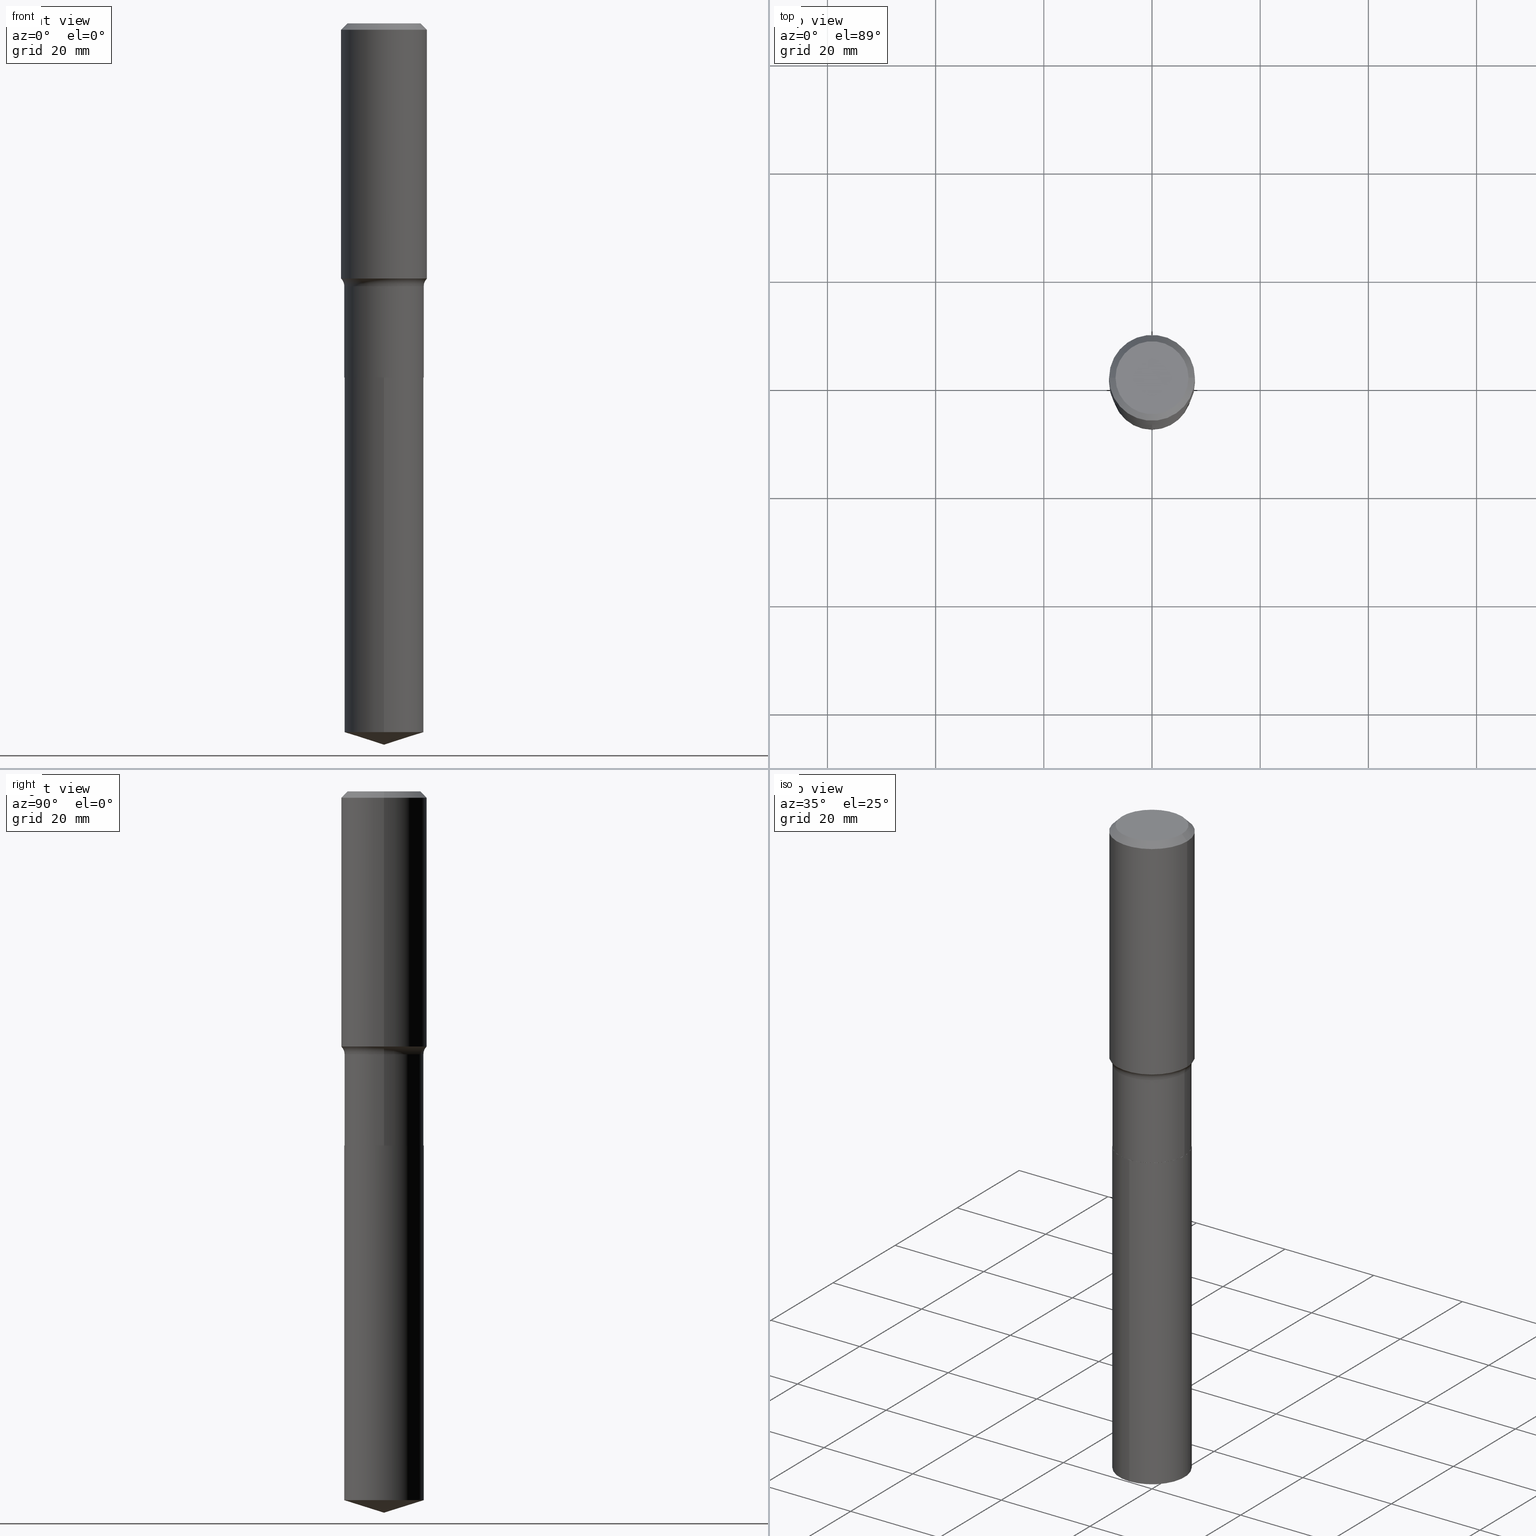
[diagram: canonical four-view strip — front | top / right | iso, engineering-drawing reading convention]
A machine part, canonical four-view strip (front | top / right | iso — engineering-drawing reading convention). The complete STEP part file that produces these views, byte-faithful:
ISO-10303-21;
HEADER;
FILE_DESCRIPTION (( 'STEP AP203' ),
    '1' );
FILE_NAME ('51539.STEP',
    '2024-04-19T13:00:52',
    ( '' ),
    ( '' ),
    'SwSTEP 2.0',
    'SolidWorks 2023',
    '' );
FILE_SCHEMA (( 'CONFIG_CONTROL_DESIGN' ));
ENDSEC;

DATA;
#1 = EDGE_CURVE ( 'NONE', #137, #305, #34, .T. ) ;
#2 = FACE_OUTER_BOUND ( 'NONE', #252, .T. ) ;
#3 = ADVANCED_FACE ( 'NONE', ( #299 ), #27, .T. ) ;
#4 = LINE ( 'NONE', #39, #103 ) ;
#5 = DIRECTION ( 'NONE',  ( 1.000000000000000000, -6.982962677686269077E-15, 0.000000000000000000 ) ) ;
#6 = EDGE_CURVE ( 'NONE', #427, #247, #492, .T. ) ;
#7 = DIRECTION ( 'NONE',  ( 1.000000000000000000, -6.982962677686266711E-15, 4.876176775795935232E-29 ) ) ;
#8 = DIRECTION ( 'NONE',  ( -2.445468806185136597E-29, 3.491481338843145583E-15, 1.000000000000000000 ) ) ;
#9 = CARTESIAN_POINT ( 'NONE',  ( 6.304663129225902554E-29, -9.001388039671515633E-15, -2.578100000000000502 ) ) ;
#10 = EDGE_CURVE ( 'NONE', #36, #463, #171, .T. ) ;
#11 = DIRECTION ( 'NONE',  ( 1.000000000000000000, -6.982962677686269077E-15, 0.000000000000000000 ) ) ;
#12 = CARTESIAN_POINT ( 'NONE',  ( -7.955031918821650812E-47, 1.135767727816383927E-32, 3.252968060235157842E-18 ) ) ;
#13 = ORIENTED_EDGE ( 'NONE', *, *, #109, .T. ) ;
#14 = DIRECTION ( 'NONE',  ( -2.445458499673719709E-29, 3.491496098354104779E-15, 1.000000000000000000 ) ) ;
#15 = DIRECTION ( 'NONE',  ( -2.445458499673719709E-29, 3.491496098354104779E-15, 1.000000000000000000 ) ) ;
#16 = AXIS2_PLACEMENT_3D ( 'NONE', #202, #379, #125 ) ;
#17 = DIRECTION ( 'NONE',  ( 2.445468806185136597E-29, -3.491481338843145583E-15, -1.000000000000000000 ) ) ;
#18 = DIRECTION ( 'NONE',  ( -2.445468806185136597E-29, 3.491481338843145583E-15, 1.000000000000000000 ) ) ;
#19 = EDGE_CURVE ( 'NONE', #491, #36, #61, .T. ) ;
#20 = ORIENTED_EDGE ( 'NONE', *, *, #99, .F. ) ;
#21 = AXIS2_PLACEMENT_3D ( 'NONE', #469, #424, #93 ) ;
#22 = FACE_OUTER_BOUND ( 'NONE', #429, .T. ) ;
#23 = EDGE_CURVE ( 'NONE', #230, #72, #487, .T. ) ;
#24 = DIRECTION ( 'NONE',  ( -2.445468806185136597E-29, 3.491481338843145583E-15, 1.000000000000000000 ) ) ;
#25 = APPROVAL ( #81, 'UNSPECIFIED' ) ;
#26 = DIRECTION ( 'NONE',  ( 0.000000000000000000, 0.000000000000000000, 1.000000000000000000 ) ) ;
#27 = CONICAL_SURFACE ( 'NONE', #272, 0.2885499999999999732, 0.7853981633967311859 ) ;
#28 = VECTOR ( 'NONE', #420, 39.37007874015748143 ) ;
#29 = APPROVAL_DATE_TIME ( #490, #115 ) ;
#30 = ORIENTED_EDGE ( 'NONE', *, *, #403, .T. ) ;
#31 = ORIENTED_EDGE ( 'NONE', *, *, #23, .F. ) ;
#32 = COORDINATED_UNIVERSAL_TIME_OFFSET ( 5, 0, .BEHIND. ) ;
#33 = DIRECTION ( 'NONE',  ( -2.445468806185136877E-29, 3.491481338843145188E-15, 1.000000000000000000 ) ) ;
#34 = LINE ( 'NONE', #399, #375 ) ;
#35 = CIRCLE ( 'NONE', #234, 0.2890499999999999181 ) ;
#36 = VERTEX_POINT ( 'NONE', #245 ) ;
#37 = APPROVAL_DATE_TIME ( #194, #25 ) ;
#38 = TOROIDAL_SURFACE ( 'NONE', #218, 0.3670499999999998209, 0.07799999999999999989 ) ;
#39 = CARTESIAN_POINT ( 'NONE',  ( -0.3125000000000000000, 2.018512649018685091E-15, -0.04687500000000027062 ) ) ;
#40 = ADVANCED_FACE ( 'NONE', ( #22 ), #434, .T. ) ;
#41 = ORIENTED_EDGE ( 'NONE', *, *, #190, .F. ) ;
#42 = DIRECTION ( 'NONE',  ( -2.445468806185136877E-29, 3.491481338843145188E-15, 1.000000000000000000 ) ) ;
#43 = CARTESIAN_POINT ( 'NONE',  ( 0.000000000000000000, 0.000000000000000000, 0.000000000000000000 ) ) ;
#44 = VECTOR ( 'NONE', #289, 39.37007874015748143 ) ;
#45 = CC_DESIGN_APPROVAL ( #115, ( #214 ) ) ;
#46 = ORIENTED_EDGE ( 'NONE', *, *, #276, .T. ) ;
#47 = DIRECTION ( 'NONE',  ( -1.000000000000000000, 6.982962677686266711E-15, 0.000000000000000000 ) ) ;
#48 = ORIENTED_EDGE ( 'NONE', *, *, #264, .F. ) ;
#49 = DIRECTION ( 'NONE',  ( -1.000000000000000000, 6.982962677686266711E-15, 0.000000000000000000 ) ) ;
#50 = EDGE_CURVE ( 'NONE', #247, #427, #35, .T. ) ;
#51 = ORIENTED_EDGE ( 'NONE', *, *, #193, .T. ) ;
#52 = CARTESIAN_POINT ( 'NONE',  ( 4.678915466874022448E-29, -6.680251245608591402E-15, -1.913300000000000001 ) ) ;
#53 = ORIENTED_EDGE ( 'NONE', *, *, #183, .T. ) ;
#54 = CARTESIAN_POINT ( 'NONE',  ( 2.895836394674520226E-29, -1.388302194191780780E-14, -2.578100000000000502 ) ) ;
#55 = LOCAL_TIME ( 9, 0, 52.00000000000000000, #32 ) ;
#56 = DIRECTION ( 'NONE',  ( 1.000000000000000000, -6.982962677686265922E-15, 4.876176775795935232E-29 ) ) ;
#57 = FACE_OUTER_BOUND ( 'NONE', #135, .T. ) ;
#58 = EDGE_CURVE ( 'NONE', #36, #427, #224, .T. ) ;
#59 = ORIENTED_EDGE ( 'NONE', *, *, #89, .T. ) ;
#60 = ORIENTED_EDGE ( 'NONE', *, *, #403, .F. ) ;
#61 = CIRCLE ( 'NONE', #186, 0.3125000000000002776 ) ;
#62 = DIRECTION ( 'NONE',  ( 1.000000000000000000, 0.000000000000000000, 0.000000000000000000 ) ) ;
#63 = FACE_OUTER_BOUND ( 'NONE', #259, .T. ) ;
#64 =( CONVERSION_BASED_UNIT ( 'INCH', #281 ) LENGTH_UNIT ( ) NAMED_UNIT ( #184 ) );
#65 = EDGE_LOOP ( 'NONE', ( #13, #467, #359, #346 ) ) ;
#66 = CYLINDRICAL_SURFACE ( 'NONE', #116, 0.3125000000000001665 ) ;
#67 = DIRECTION ( 'NONE',  ( 0.7071067811860403118, -2.468850131076945266E-15, 0.7071067811870545006 ) ) ;
#68 =( NAMED_UNIT ( * ) SI_UNIT ( $, .STERADIAN. ) SOLID_ANGLE_UNIT ( ) );
#69 = CIRCLE ( 'NONE', #311, 0.2890499999999999736 ) ;
#70 = ADVANCED_FACE ( 'NONE', ( #386 ), #458, .F. ) ;
#71 = DIRECTION ( 'NONE',  ( -2.445458499673719709E-29, 3.491496098354104779E-15, 1.000000000000000000 ) ) ;
#72 = VERTEX_POINT ( 'NONE', #146 ) ;
#73 = PERSON_AND_ORGANIZATION_ROLE ( 'creator' ) ;
#74 = CARTESIAN_POINT ( 'NONE',  ( -0.2885499999999999732, -6.948467748461633170E-15, -2.578100000000000502 ) ) ;
#75 = VECTOR ( 'NONE', #266, 39.37007874015748143 ) ;
#76 = DIRECTION ( 'NONE',  ( -2.445458499673719709E-29, 3.491496098354104779E-15, 1.000000000000000000 ) ) ;
#77 = PERSON_AND_ORGANIZATION ( #485, #404 ) ;
#78 = CARTESIAN_POINT ( 'NONE',  ( -0.3125000000000000000, -1.104182445818667700E-15, -0.04687500000000027062 ) ) ;
#79 = CALENDAR_DATE ( 2024, 19, 4 ) ;
#80 = CARTESIAN_POINT ( 'NONE',  ( 2.053823777714632509E-15, 0.2890499999999909808, -2.578100000000000946 ) ) ;
#81 = APPROVAL_STATUS ( 'not_yet_approved' ) ;
#82 = CARTESIAN_POINT ( 'NONE',  ( -8.343920999343760245E-28, 1.191301598482898954E-13, 34.12007874015748143 ) ) ;
#83 = VERTEX_POINT ( 'NONE', #286 ) ;
#84 = ADVANCED_FACE ( 'NONE', ( #63 ), #66, .T. ) ;
#85 = CC_DESIGN_APPROVAL ( #330, ( #318 ) ) ;
#86 = EDGE_LOOP ( 'NONE', ( #387, #123 ) ) ;
#87 = CYLINDRICAL_SURFACE ( 'NONE', #16, 0.2890499999999999736 ) ;
#88 = CARTESIAN_POINT ( 'NONE',  ( 1.283865712328702700E-28, -1.833035451635904890E-14, -5.250000000000000000 ) ) ;
#89 = EDGE_CURVE ( 'NONE', #106, #463, #161, .T. ) ;
#90 = ORIENTED_EDGE ( 'NONE', *, *, #238, .F. ) ;
#91 = CARTESIAN_POINT ( 'NONE',  ( 1.146313502899289261E-30, -1.636631877582734044E-16, -0.04687500000000027062 ) ) ;
#92 = FACE_OUTER_BOUND ( 'NONE', #65, .T. ) ;
#93 = DIRECTION ( 'NONE',  ( 1.000000000000000000, -6.982962677686261977E-15, 0.000000000000000000 ) ) ;
#94 = AXIS2_PLACEMENT_3D ( 'NONE', #219, #98, #136 ) ;
#95 = EDGE_CURVE ( 'NONE', #83, #247, #302, .T. ) ;
#96 = DIRECTION ( 'NONE',  ( -6.982962677686265922E-15, -1.000000000000000000, 3.780450432332487407E-15 ) ) ;
#97 = APPLICATION_PROTOCOL_DEFINITION ( 'international standard', 'config_control_design', 1994, #210 ) ;
#98 = DIRECTION ( 'NONE',  ( -2.445468806185136597E-29, 3.491481338843145583E-15, 1.000000000000000000 ) ) ;
#99 = EDGE_CURVE ( 'NONE', #389, #465, #153, .T. ) ;
#100 = LOCAL_TIME ( 9, 0, 52.00000000000000000, #326 ) ;
#101 = TOROIDAL_SURFACE ( 'NONE', #134, 0.3670499999999998209, 0.07799999999999999989 ) ;
#102 = VERTEX_POINT ( 'NONE', #296 ) ;
#103 = VECTOR ( 'NONE', #156, 39.37007874015748143 ) ;
#104 = DIRECTION ( 'NONE',  ( -2.445468806185136597E-29, 3.491481338843145583E-15, 1.000000000000000000 ) ) ;
#105 = DIRECTION ( 'NONE',  ( -6.982962677686265922E-15, -1.000000000000000000, 3.780450432332487407E-15 ) ) ;
#106 = VERTEX_POINT ( 'NONE', #78 ) ;
#107 = FACE_OUTER_BOUND ( 'NONE', #189, .T. ) ;
#108 = SECURITY_CLASSIFICATION ( '', '', #411 ) ;
#109 = EDGE_CURVE ( 'NONE', #36, #491, #451, .T. ) ;
#110 = DIRECTION ( 'NONE',  ( -2.445468806185136597E-29, 3.491481338843145583E-15, 1.000000000000000000 ) ) ;
#111 = EDGE_LOOP ( 'NONE', ( #20, #362, #114, #155 ) ) ;
#112 = DIRECTION ( 'NONE',  ( -2.445458499673719429E-29, 3.491496098354104779E-15, 1.000000000000000000 ) ) ;
#113 = CARTESIAN_POINT ( 'NONE',  ( 6.303440394822808632E-29, -8.999642299002091763E-15, -2.577599999999999891 ) ) ;
#114 = ORIENTED_EDGE ( 'NONE', *, *, #226, .T. ) ;
#115 = APPROVAL ( #478, 'UNSPECIFIED' ) ;
#116 = AXIS2_PLACEMENT_3D ( 'NONE', #187, #337, #7 ) ;
#117 = AXIS2_PLACEMENT_3D ( 'NONE', #174, #104, #249 ) ;
#118 = CALENDAR_DATE ( 2024, 19, 4 ) ;
#119 = CARTESIAN_POINT ( 'NONE',  ( 0.2885499999999999732, -1.101632192031788842E-14, -2.578100000000000502 ) ) ;
#120 = CARTESIAN_POINT ( 'NONE',  ( -1.591006383764330162E-46, 2.271535455632767854E-32, 6.505936120470315685E-18 ) ) ;
#121 = CARTESIAN_POINT ( 'NONE',  ( -0.2890499999999999736, 2.053823777714569400E-15, -1.421818187838180369E-29 ) ) ;
#122 = AXIS2_PLACEMENT_3D ( 'NONE', #412, #110, #447 ) ;
#123 = ORIENTED_EDGE ( 'NONE', *, *, #376, .T. ) ;
#124 = DIRECTION ( 'NONE',  ( -2.445468806185136597E-29, 3.491481338843145583E-15, 1.000000000000000000 ) ) ;
#125 = DIRECTION ( 'NONE',  ( -6.982962677686265922E-15, -1.000000000000000000, 3.780450432332487407E-15 ) ) ;
#126 = PLANE ( 'NONE',  #444 ) ;
#127 = ORIENTED_EDGE ( 'NONE', *, *, #99, .T. ) ;
#128 = MANIFOLD_SOLID_BREP ( 'Body-Move/Copy2[1]', #215 ) ;
#129 = EDGE_LOOP ( 'NONE', ( #480, #472, #357, #220 ) ) ;
#130 = FACE_OUTER_BOUND ( 'NONE', #172, .T. ) ;
#131 = DIRECTION ( 'NONE',  ( -6.982962677686265922E-15, -1.000000000000000000, 3.780450432332487407E-15 ) ) ;
#132 = CONICAL_SURFACE ( 'NONE', #94, 0.2885499999999999732, 0.7853981633967311859 ) ;
#133 = CARTESIAN_POINT ( 'NONE',  ( 4.542575426899541129E-29, -6.485593802379690278E-15, -1.857547892416518964 ) ) ;
#134 = AXIS2_PLACEMENT_3D ( 'NONE', #237, #124, #347 ) ;
#135 = EDGE_LOOP ( 'NONE', ( #180, #396 ) ) ;
#136 = DIRECTION ( 'NONE',  ( 1.000000000000000000, -6.982962677686269077E-15, 0.000000000000000000 ) ) ;
#137 = VERTEX_POINT ( 'NONE', #119 ) ;
#138 = APPLICATION_PROTOCOL_DEFINITION ( 'international standard', 'config_control_design', 1994, #390 ) ;
#139 = ORIENTED_EDGE ( 'NONE', *, *, #19, .T. ) ;
#140 = AXIS2_PLACEMENT_3D ( 'NONE', #453, #343, #340 ) ;
#141 = ADVANCED_FACE ( 'NONE', ( #2 ), #410, .T. ) ;
#142 = DATE_AND_TIME ( #182, #100 ) ;
#143 = MANIFOLD_SOLID_BREP ( 'Body-Move/Copy2[2]', #261 ) ;
#144 = CONICAL_SURFACE ( 'NONE', #284, 0.3125000000000000000, 0.7853981633974452814 ) ;
#145 = ORIENTED_EDGE ( 'NONE', *, *, #183, .F. ) ;
#146 = CARTESIAN_POINT ( 'NONE',  ( -0.2656250000000000000, 1.936681055139549843E-15, 6.505936120457058354E-18 ) ) ;
#147 = PERSON_AND_ORGANIZATION ( #485, #404 ) ;
#148 = AXIS2_PLACEMENT_3D ( 'NONE', #275, #14, #167 ) ;
#149 = VERTEX_POINT ( 'NONE', #74 ) ;
#150 = DIRECTION ( 'NONE',  ( -2.445468806185136597E-29, 3.491481338843145583E-15, 1.000000000000000000 ) ) ;
#151 = COORDINATED_UNIVERSAL_TIME_OFFSET ( 5, 0, .BEHIND. ) ;
#152 = DIRECTION ( 'NONE',  ( 2.445468806185136597E-29, -3.491481338843145583E-15, -1.000000000000000000 ) ) ;
#153 = LINE ( 'NONE', #80, #349 ) ;
#154 = AXIS2_PLACEMENT_3D ( 'NONE', #91, #278, #461 ) ;
#155 = ORIENTED_EDGE ( 'NONE', *, *, #376, .F. ) ;
#156 = DIRECTION ( 'NONE',  ( -0.7071067811865453523, 2.468850131082234184E-15, -0.7071067811865496822 ) ) ;
#157 = DIRECTION ( 'NONE',  ( -0.7071067811860403118, 7.493145998868519270E-15, 0.7071067811870545006 ) ) ;
#158 = AXIS2_PLACEMENT_3D ( 'NONE', #82, #76, #222 ) ;
#159 = VECTOR ( 'NONE', #196, 39.37007874015748143 ) ;
#160 = CARTESIAN_POINT ( 'NONE',  ( -1.591006383764330162E-46, 2.271535455632767854E-32, 6.505936120470315685E-18 ) ) ;
#161 = CIRCLE ( 'NONE', #177, 0.3125000000000000000 ) ;
#162 = APPROVAL_PERSON_ORGANIZATION ( #185, #25, #414 ) ;
#163 = ORIENTED_EDGE ( 'NONE', *, *, #421, .F. ) ;
#164 = DIRECTION ( 'NONE',  ( -2.445458499673719709E-29, 3.491496098354104779E-15, 1.000000000000000000 ) ) ;
#165 = PRODUCT_DEFINITION_SHAPE ( 'NONE', 'NONE',  #214 ) ;
#166 = DIRECTION ( 'NONE',  ( 1.000000000000000000, -6.982962677686265922E-15, 4.876176775795935793E-29 ) ) ;
#167 = DIRECTION ( 'NONE',  ( -6.982962677686265922E-15, -1.000000000000000000, 3.780450432332487407E-15 ) ) ;
#168 = VECTOR ( 'NONE', #471, 39.37007874015748143 ) ;
#169 = PERSON_AND_ORGANIZATION_ROLE ( 'design_owner' ) ;
#170 = UNCERTAINTY_MEASURE_WITH_UNIT (LENGTH_MEASURE( 1.000000000000000082E-05 ), #64, 'distance_accuracy_value', 'NONE');
#171 = LINE ( 'NONE', #435, #168 ) ;
#172 = EDGE_LOOP ( 'NONE', ( #48, #294, #401, #406 ) ) ;
#173 = ORIENTED_EDGE ( 'NONE', *, *, #313, .T. ) ;
#174 = CARTESIAN_POINT ( 'NONE',  ( 6.304663129225902554E-29, -9.001388039671515633E-15, -2.578100000000000502 ) ) ;
#175 = PERSON_AND_ORGANIZATION_ROLE ( 'creator' ) ;
#176 = ORIENTED_EDGE ( 'NONE', *, *, #313, .F. ) ;
#177 = AXIS2_PLACEMENT_3D ( 'NONE', #405, #150, #269 ) ;
#178 = ADVANCED_FACE ( 'NONE', ( #228 ), #333, .T. ) ;
#179 = CARTESIAN_POINT ( 'NONE',  ( 6.304663129225901433E-29, -9.001388039671514055E-15, -2.578100000000000058 ) ) ;
#180 = ORIENTED_EDGE ( 'NONE', *, *, #489, .F. ) ;
#181 = CIRCLE ( 'NONE', #250, 0.2890499999999999736 ) ;
#182 = CALENDAR_DATE ( 2024, 19, 4 ) ;
#183 = EDGE_CURVE ( 'NONE', #305, #83, #438, .T. ) ;
#184 = DIMENSIONAL_EXPONENTS ( 1.000000000000000000, 0.000000000000000000, 0.000000000000000000, 0.000000000000000000, 0.000000000000000000, 0.000000000000000000, 0.000000000000000000 ) ;
#185 = PERSON_AND_ORGANIZATION ( #485, #404 ) ;
#186 = AXIS2_PLACEMENT_3D ( 'NONE', #133, #355, #431 ) ;
#187 = CARTESIAN_POINT ( 'NONE',  ( 0.000000000000000000, 0.000000000000000000, 0.000000000000000000 ) ) ;
#188 = CARTESIAN_POINT ( 'NONE',  ( 0.2890499999999999736, -1.101806766098730598E-14, -2.577599999999999891 ) ) ;
#189 = EDGE_LOOP ( 'NONE', ( #368, #383, #456, #207 ) ) ;
#190 = EDGE_CURVE ( 'NONE', #230, #463, #371, .T. ) ;
#191 = AXIS2_PLACEMENT_3D ( 'NONE', #54, #384, #166 ) ;
#192 = DIRECTION ( 'NONE',  ( 1.000000000000000000, -6.982962677686265922E-15, 4.876176775795935232E-29 ) ) ;
#193 = EDGE_CURVE ( 'NONE', #305, #427, #457, .T. ) ;
#194 = DATE_AND_TIME ( #79, #291 ) ;
#195 = CARTESIAN_POINT ( 'NONE',  ( 4.678915466874022448E-29, -6.680251245608591402E-15, -1.913300000000000001 ) ) ;
#196 = DIRECTION ( 'NONE',  ( 0.7071067811865453523, -7.319954787623248157E-15, -0.7071067811865496822 ) ) ;
#197 = DIRECTION ( 'NONE',  ( -1.000000000000000000, 6.982962677686265922E-15, -4.876176775795935793E-29 ) ) ;
#198 = DIRECTION ( 'NONE',  ( -2.445468806185136597E-29, 3.491481338843145583E-15, 1.000000000000000000 ) ) ;
#199 =( GEOMETRIC_REPRESENTATION_CONTEXT ( 3 ) GLOBAL_UNCERTAINTY_ASSIGNED_CONTEXT ( ( #170 ) ) GLOBAL_UNIT_ASSIGNED_CONTEXT ( ( #64, #208, #68 ) ) REPRESENTATION_CONTEXT ( 'NONE', 'WORKASPACE' ) );
#200 = CARTESIAN_POINT ( 'NONE',  ( -2.018425361985088389E-15, -0.2890500000000179592, -5.158862885074531057 ) ) ;
#201 = DIRECTION ( 'NONE',  ( -6.982962677686265922E-15, -1.000000000000000000, 3.780450432332487407E-15 ) ) ;
#202 = CARTESIAN_POINT ( 'NONE',  ( 6.304663129225901433E-29, -9.001388039671514055E-15, -2.578100000000000058 ) ) ;
#203 = AXIS2_PLACEMENT_3D ( 'NONE', #260, #152, #47 ) ;
#204 = CARTESIAN_POINT ( 'NONE',  ( 1.146313502899289261E-30, -1.636631877582734044E-16, -0.04687500000000027062 ) ) ;
#205 = FACE_OUTER_BOUND ( 'NONE', #86, .T. ) ;
#206 = CARTESIAN_POINT ( 'NONE',  ( 2.053823777714695223E-15, 0.2890499999999819325, -5.158862885074533722 ) ) ;
#207 = ORIENTED_EDGE ( 'NONE', *, *, #276, .F. ) ;
#208 =( NAMED_UNIT ( * ) PLANE_ANGLE_UNIT ( ) SI_UNIT ( $, .RADIAN. ) );
#209 = DIRECTION ( 'NONE',  ( 1.000000000000000000, -6.982962677686269077E-15, 0.000000000000000000 ) ) ;
#210 = APPLICATION_CONTEXT ( 'configuration controlled 3d designs of mechanical parts and assemblies' ) ;
#211 = PERSON_AND_ORGANIZATION ( #485, #404 ) ;
#212 = LINE ( 'NONE', #439, #488 ) ;
#213 = ORIENTED_EDGE ( 'NONE', *, *, #324, .F. ) ;
#214 = PRODUCT_DEFINITION ( 'UNKNOWN', '', #318, #468 ) ;
#215 = CLOSED_SHELL ( 'NONE', ( #312, #178, #40, #437, #358 ) ) ;
#216 =( LENGTH_UNIT ( ) NAMED_UNIT ( * ) SI_UNIT ( $, .METRE. ) );
#217 = AXIS2_PLACEMENT_3D ( 'NONE', #179, #71, #105 ) ;
#218 = AXIS2_PLACEMENT_3D ( 'NONE', #52, #382, #243 ) ;
#219 = CARTESIAN_POINT ( 'NONE',  ( 6.304663129225902554E-29, -9.001388039671515633E-15, -2.578100000000000502 ) ) ;
#220 = ORIENTED_EDGE ( 'NONE', *, *, #58, .F. ) ;
#221 = CALENDAR_DATE ( 2024, 19, 4 ) ;
#222 = DIRECTION ( 'NONE',  ( -6.982962677686265922E-15, -1.000000000000000000, 3.500519750498636590E-15 ) ) ;
#223 = PERSON_AND_ORGANIZATION ( #485, #404 ) ;
#224 = CIRCLE ( 'NONE', #21, 0.07799999999999995826 ) ;
#225 = CARTESIAN_POINT ( 'NONE',  ( 0.2890499999999999736, -2.018425361985215001E-15, 1.409458897043814988E-29 ) ) ;
#226 = EDGE_CURVE ( 'NONE', #256, #448, #342, .T. ) ;
#227 = AXIS2_PLACEMENT_3D ( 'NONE', #285, #26, #62 ) ;
#228 = FACE_OUTER_BOUND ( 'NONE', #397, .T. ) ;
#229 = DIRECTION ( 'NONE',  ( -2.445468806185136597E-29, 3.491481338843145583E-15, 1.000000000000000000 ) ) ;
#230 = VERTEX_POINT ( 'NONE', #416 ) ;
#231 = DIRECTION ( 'NONE',  ( -1.000000000000000000, 7.105427357601001859E-15, 0.000000000000000000 ) ) ;
#232 = EDGE_CURVE ( 'NONE', #491, #106, #367, .T. ) ;
#233 = DIRECTION ( 'NONE',  ( 1.000000000000000000, -6.982962677686267499E-15, 0.000000000000000000 ) ) ;
#234 = AXIS2_PLACEMENT_3D ( 'NONE', #317, #24, #209 ) ;
#235 = AXIS2_PLACEMENT_3D ( 'NONE', #464, #18, #56 ) ;
#236 = FACE_OUTER_BOUND ( 'NONE', #334, .T. ) ;
#237 = CARTESIAN_POINT ( 'NONE',  ( 4.678915466874022448E-29, -6.680251245608591402E-15, -1.913300000000000001 ) ) ;
#238 = EDGE_CURVE ( 'NONE', #72, #106, #4, .T. ) ;
#239 = ORIENTED_EDGE ( 'NONE', *, *, #89, .F. ) ;
#240 = DIRECTION ( 'NONE',  ( -2.445468806185136597E-29, 3.491481338843145583E-15, 1.000000000000000000 ) ) ;
#241 = CC_DESIGN_PERSON_AND_ORGANIZATION_ASSIGNMENT ( #223, #73, ( #318 ) ) ;
#242 = APPROVAL_PERSON_ORGANIZATION ( #147, #330, #441 ) ;
#243 = DIRECTION ( 'NONE',  ( 1.000000000000000000, -6.982962677686266711E-15, 4.883557194083112340E-29 ) ) ;
#244 = CARTESIAN_POINT ( 'NONE',  ( -0.2885499999999999732, -6.951116975635745948E-15, -2.578100000000000502 ) ) ;
#245 = CARTESIAN_POINT ( 'NONE',  ( 0.3125000000000003331, -8.667769639156650991E-15, -1.857547892416518964 ) ) ;
#246 = ORIENTED_EDGE ( 'NONE', *, *, #1, .F. ) ;
#247 = VERTEX_POINT ( 'NONE', #345 ) ;
#248 = AXIS2_PLACEMENT_3D ( 'NONE', #484, #321, #479 ) ;
#249 = DIRECTION ( 'NONE',  ( 1.000000000000000000, -6.982962677686269077E-15, 0.000000000000000000 ) ) ;
#250 = AXIS2_PLACEMENT_3D ( 'NONE', #113, #262, #233 ) ;
#251 = ORIENTED_EDGE ( 'NONE', *, *, #339, .F. ) ;
#252 = EDGE_LOOP ( 'NONE', ( #31, #446, #290, #90 ) ) ;
#253 = CARTESIAN_POINT ( 'NONE',  ( 2.053823777714696012E-15, 0.2890499999999909808, -2.578100000000000946 ) ) ;
#254 = CARTESIAN_POINT ( 'NONE',  ( 0.3125000000000000000, -2.345839024535231998E-15, -0.04687500000000027062 ) ) ;
#255 = DIRECTION ( 'NONE',  ( 1.000000000000000000, -6.982962677686268288E-15, 4.876286914311434227E-29 ) ) ;
#256 = VERTEX_POINT ( 'NONE', #200 ) ;
#257 = AXIS2_PLACEMENT_3D ( 'NONE', #160, #240, #388 ) ;
#258 = AXIS2_PLACEMENT_3D ( 'NONE', #271, #15, #131 ) ;
#259 = EDGE_LOOP ( 'NONE', ( #454, #139, #263, #239 ) ) ;
#260 = CARTESIAN_POINT ( 'NONE',  ( 1.146313502899289261E-30, -1.636631877582734044E-16, -0.04687500000000027062 ) ) ;
#261 = CLOSED_SHELL ( 'NONE', ( #3, #141, #336, #303, #356, #267, #335, #84, #395, #70, #417, #449 ) ) ;
#262 = DIRECTION ( 'NONE',  ( -2.445468806185136597E-29, 3.491481338843145583E-15, 1.000000000000000000 ) ) ;
#263 = ORIENTED_EDGE ( 'NONE', *, *, #10, .T. ) ;
#264 = EDGE_CURVE ( 'NONE', #491, #247, #476, .T. ) ;
#265 = DATE_AND_TIME ( #118, #55 ) ;
#266 = DIRECTION ( 'NONE',  ( -2.445468806185136877E-29, 3.491481338843145188E-15, 1.000000000000000000 ) ) ;
#267 = ADVANCED_FACE ( 'NONE', ( #374 ), #450, .T. ) ;
#268 = CARTESIAN_POINT ( 'NONE',  ( 6.304663129225902554E-29, -9.001388039671515633E-15, -2.578100000000000502 ) ) ;
#269 = DIRECTION ( 'NONE',  ( 1.000000000000000000, -6.982962677686266711E-15, 0.000000000000000000 ) ) ;
#270 = EDGE_LOOP ( 'NONE', ( #53, #319, #477, #373 ) ) ;
#271 = CARTESIAN_POINT ( 'NONE',  ( 6.304663129225901433E-29, -9.001388039671514055E-15, -2.578100000000000058 ) ) ;
#272 = AXIS2_PLACEMENT_3D ( 'NONE', #268, #229, #372 ) ;
#273 = LOCAL_TIME ( 9, 0, 52.00000000000000000, #366 ) ;
#274 = DIRECTION ( 'NONE',  ( -2.445468806185136597E-29, 3.491481338843145583E-15, 1.000000000000000000 ) ) ;
#275 = CARTESIAN_POINT ( 'NONE',  ( 6.304663129225901433E-29, -9.001388039671514055E-15, -2.578100000000000058 ) ) ;
#276 = EDGE_CURVE ( 'NONE', #83, #305, #181, .T. ) ;
#277 = EDGE_CURVE ( 'NONE', #149, #137, #393, .T. ) ;
#278 = DIRECTION ( 'NONE',  ( -2.445468806185136597E-29, 3.491481338843145583E-15, 1.000000000000000000 ) ) ;
#279 = MECHANICAL_CONTEXT ( 'NONE', #210, 'mechanical' ) ;
#280 = ORIENTED_EDGE ( 'NONE', *, *, #226, .F. ) ;
#281 = LENGTH_MEASURE_WITH_UNIT ( LENGTH_MEASURE( 0.02539999999999999897 ), #216 );
#282 = AXIS2_PLACEMENT_3D ( 'NONE', #195, #341, #5 ) ;
#283 = CALENDAR_DATE ( 2024, 19, 4 ) ;
#284 = AXIS2_PLACEMENT_3D ( 'NONE', #204, #17, #49 ) ;
#285 = CARTESIAN_POINT ( 'NONE',  ( 0.000000000000000000, 0.000000000000000000, 0.000000000000000000 ) ) ;
#286 = CARTESIAN_POINT ( 'NONE',  ( -0.2890500000000000291, -5.786122994590770211E-15, -2.577599999999999891 ) ) ;
#287 = APPROVAL_STATUS ( 'not_yet_approved' ) ;
#288 = PERSON_AND_ORGANIZATION_ROLE ( 'design_supplier' ) ;
#289 = DIRECTION ( 'NONE',  ( -2.445458499673719429E-29, 3.491496098354104779E-15, 1.000000000000000000 ) ) ;
#290 = ORIENTED_EDGE ( 'NONE', *, *, #409, .T. ) ;
#291 = LOCAL_TIME ( 9, 0, 52.00000000000000000, #151 ) ;
#292 = AXIS2_PLACEMENT_3D ( 'NONE', #423, #274, #348 ) ;
#293 = PRODUCT_RELATED_PRODUCT_CATEGORY ( 'detail', '', ( #392 ) ) ;
#294 = ORIENTED_EDGE ( 'NONE', *, *, #109, .F. ) ;
#295 = SHAPE_DEFINITION_REPRESENTATION ( #165, #407 ) ;
#296 = CARTESIAN_POINT ( 'NONE',  ( 1.283865712328702700E-28, -1.833035451635904890E-14, -5.250000000000000000 ) ) ;
#297 = DATE_TIME_ROLE ( 'classification_date' ) ;
#298 = CARTESIAN_POINT ( 'NONE',  ( -0.3670499999999998209, -4.072204134001144549E-15, -1.913300000000000001 ) ) ;
#299 = FACE_OUTER_BOUND ( 'NONE', #323, .T. ) ;
#300 = PERSON_AND_ORGANIZATION_ROLE ( 'classification_officer' ) ;
#301 = EDGE_LOOP ( 'NONE', ( #30, #331 ) ) ;
#302 = LINE ( 'NONE', #121, #310 ) ;
#303 = ADVANCED_FACE ( 'NONE', ( #445 ), #38, .F. ) ;
#304 = VECTOR ( 'NONE', #157, 39.37007874015748854 ) ;
#305 = VERTEX_POINT ( 'NONE', #188 ) ;
#306 = DIRECTION ( 'NONE',  ( -2.445468806185136597E-29, 3.491481338843145583E-15, 1.000000000000000000 ) ) ;
#307 = FACE_OUTER_BOUND ( 'NONE', #111, .T. ) ;
#308 = ORIENTED_EDGE ( 'NONE', *, *, #238, .T. ) ;
#309 = CARTESIAN_POINT ( 'NONE',  ( 1.261581166217388474E-28, -1.801211158368632694E-14, -5.158862885074532834 ) ) ;
#310 = VECTOR ( 'NONE', #42, 39.37007874015748143 ) ;
#311 = AXIS2_PLACEMENT_3D ( 'NONE', #309, #164, #201 ) ;
#312 = ADVANCED_FACE ( 'NONE', ( #236 ), #87, .T. ) ;
#313 = EDGE_CURVE ( 'NONE', #102, #256, #466, .T. ) ;
#314 = FACE_OUTER_BOUND ( 'NONE', #270, .T. ) ;
#315 = CARTESIAN_POINT ( 'NONE',  ( 1.261581166217388474E-28, -1.801211158368632694E-14, -5.158862885074532834 ) ) ;
#316 = PLANE ( 'NONE',  #191 ) ;
#317 = CARTESIAN_POINT ( 'NONE',  ( 4.678915466874022448E-29, -6.680251245608591402E-15, -1.913300000000000001 ) ) ;
#318 = PRODUCT_DEFINITION_FORMATION_WITH_SPECIFIED_SOURCE ( 'ANY', '', #392, .NOT_KNOWN. ) ;
#319 = ORIENTED_EDGE ( 'NONE', *, *, #95, .T. ) ;
#320 = DIRECTION ( 'NONE',  ( 6.776566513254269181E-15, 0.9537169507482303743, 0.3007057995042619059 ) ) ;
#321 = DIRECTION ( 'NONE',  ( -2.445458499673719709E-29, 3.491496098354104779E-15, 1.000000000000000000 ) ) ;
#322 = ORIENTED_EDGE ( 'NONE', *, *, #486, .F. ) ;
#323 = EDGE_LOOP ( 'NONE', ( #327, #440, #145, #246 ) ) ;
#324 = EDGE_CURVE ( 'NONE', #389, #256, #69, .T. ) ;
#325 = ORIENTED_EDGE ( 'NONE', *, *, #486, .T. ) ;
#326 = COORDINATED_UNIVERSAL_TIME_OFFSET ( 5, 0, .BEHIND. ) ;
#327 = ORIENTED_EDGE ( 'NONE', *, *, #489, .T. ) ;
#328 = CARTESIAN_POINT ( 'NONE',  ( -2.018425361985152287E-15, -0.2890500000000090219, -2.578099999999998726 ) ) ;
#329 = CIRCLE ( 'NONE', #154, 0.3125000000000000000 ) ;
#330 = APPROVAL ( #287, 'UNSPECIFIED' ) ;
#331 = ORIENTED_EDGE ( 'NONE', *, *, #23, .T. ) ;
#332 = DATE_TIME_ROLE ( 'creation_date' ) ;
#333 = CONICAL_SURFACE ( 'NONE', #158, 124.8659371009174919, 1.265363707695897233 ) ;
#334 = EDGE_LOOP ( 'NONE', ( #418, #127, #251, #280 ) ) ;
#335 = ADVANCED_FACE ( 'NONE', ( #130 ), #101, .F. ) ;
#336 = ADVANCED_FACE ( 'NONE', ( #92 ), #352, .T. ) ;
#337 = DIRECTION ( 'NONE',  ( -2.445468806185136597E-29, 3.491481338843145583E-15, 1.000000000000000000 ) ) ;
#338 = AXIS2_PLACEMENT_3D ( 'NONE', #43, #198, #192 ) ;
#339 = EDGE_CURVE ( 'NONE', #448, #465, #475, .T. ) ;
#340 = DIRECTION ( 'NONE',  ( 1.000000000000000000, -6.982962677686265922E-15, 0.000000000000000000 ) ) ;
#341 = DIRECTION ( 'NONE',  ( -2.445468806185136597E-29, 3.491481338843145583E-15, 1.000000000000000000 ) ) ;
#342 = LINE ( 'NONE', #364, #44 ) ;
#343 = DIRECTION ( 'NONE',  ( -2.445468806185136597E-29, 3.491481338843145583E-15, 1.000000000000000000 ) ) ;
#344 = AXIS2_PLACEMENT_3D ( 'NONE', #315, #473, #96 ) ;
#345 = CARTESIAN_POINT ( 'NONE',  ( -0.2890499999999999181, -5.786122994590770999E-15, -1.913300000000000001 ) ) ;
#346 = ORIENTED_EDGE ( 'NONE', *, *, #10, .F. ) ;
#347 = DIRECTION ( 'NONE',  ( 1.000000000000000000, -6.982962677686266711E-15, 4.883557194083112340E-29 ) ) ;
#348 = DIRECTION ( 'NONE',  ( 1.000000000000000000, -6.982962677686266711E-15, 4.876176775795935232E-29 ) ) ;
#349 = VECTOR ( 'NONE', #112, 39.37007874015748143 ) ;
#350 = CIRCLE ( 'NONE', #257, 0.2656250000000000000 ) ;
#351 = CARTESIAN_POINT ( 'NONE',  ( 6.304663129225901433E-29, -9.001388039671514055E-15, -2.578100000000000058 ) ) ;
#352 = CYLINDRICAL_SURFACE ( 'NONE', #292, 0.3125000000000001665 ) ;
#353 = LINE ( 'NONE', #244, #304 ) ;
#354 = AXIS2_PLACEMENT_3D ( 'NONE', #12, #380, #197 ) ;
#355 = DIRECTION ( 'NONE',  ( -2.445468806185136597E-29, 3.491481338843145583E-15, 1.000000000000000000 ) ) ;
#356 = ADVANCED_FACE ( 'NONE', ( #314 ), #385, .T. ) ;
#357 = ORIENTED_EDGE ( 'NONE', *, *, #50, .T. ) ;
#358 = ADVANCED_FACE ( 'NONE', ( #205 ), #126, .F. ) ;
#359 = ORIENTED_EDGE ( 'NONE', *, *, #409, .F. ) ;
#360 = EDGE_LOOP ( 'NONE', ( #365, #46, #51, #482 ) ) ;
#361 = CC_DESIGN_DATE_AND_TIME_ASSIGNMENT ( #142, #332, ( #214 ) ) ;
#362 = ORIENTED_EDGE ( 'NONE', *, *, #324, .T. ) ;
#363 = PERSON_AND_ORGANIZATION ( #485, #404 ) ;
#364 = CARTESIAN_POINT ( 'NONE',  ( -2.018425361985152287E-15, -0.2890500000000090219, -2.578099999999998726 ) ) ;
#365 = ORIENTED_EDGE ( 'NONE', *, *, #95, .F. ) ;
#366 = COORDINATED_UNIVERSAL_TIME_OFFSET ( 5, 0, .BEHIND. ) ;
#367 = LINE ( 'NONE', #377, #394 ) ;
#368 = ORIENTED_EDGE ( 'NONE', *, *, #433, .F. ) ;
#369 = CC_DESIGN_SECURITY_CLASSIFICATION ( #108, ( #318 ) ) ;
#370 = AXIS2_PLACEMENT_3D ( 'NONE', #9, #306, #11 ) ;
#371 = LINE ( 'NONE', #408, #159 ) ;
#372 = DIRECTION ( 'NONE',  ( 1.000000000000000000, -6.982962677686269077E-15, 0.000000000000000000 ) ) ;
#373 = ORIENTED_EDGE ( 'NONE', *, *, #193, .F. ) ;
#374 = FACE_OUTER_BOUND ( 'NONE', #360, .T. ) ;
#375 = VECTOR ( 'NONE', #67, 39.37007874015748854 ) ;
#376 = EDGE_CURVE ( 'NONE', #465, #448, #436, .T. ) ;
#377 = CARTESIAN_POINT ( 'NONE',  ( -0.3125000000000001665, 2.220446049250314264E-15, -1.537167215704658792E-29 ) ) ;
#378 = CC_DESIGN_APPROVAL ( #25, ( #108 ) ) ;
#379 = DIRECTION ( 'NONE',  ( -2.445458499673719709E-29, 3.491496098354104779E-15, 1.000000000000000000 ) ) ;
#380 = DIRECTION ( 'NONE',  ( 2.438088387897960049E-29, -3.491481338843145188E-15, -1.000000000000000000 ) ) ;
#381 = CC_DESIGN_DATE_AND_TIME_ASSIGNMENT ( #455, #297, ( #108 ) ) ;
#382 = DIRECTION ( 'NONE',  ( -2.445468806185136597E-29, 3.491481338843145583E-15, 1.000000000000000000 ) ) ;
#383 = ORIENTED_EDGE ( 'NONE', *, *, #277, .T. ) ;
#384 = DIRECTION ( 'NONE',  ( -2.438088387897960049E-29, 3.491481338843145188E-15, 1.000000000000000000 ) ) ;
#385 = CYLINDRICAL_SURFACE ( 'NONE', #235, 0.2890499999999999736 ) ;
#386 = FACE_OUTER_BOUND ( 'NONE', #301, .T. ) ;
#387 = ORIENTED_EDGE ( 'NONE', *, *, #339, .T. ) ;
#388 = DIRECTION ( 'NONE',  ( 1.000000000000000000, -6.982962677686268288E-15, 4.876286914311434227E-29 ) ) ;
#389 = VERTEX_POINT ( 'NONE', #206 ) ;
#390 = APPLICATION_CONTEXT ( 'configuration controlled 3d designs of mechanical parts and assemblies' ) ;
#391 = PERSON_AND_ORGANIZATION ( #485, #404 ) ;
#392 = PRODUCT ( '51539', '51539', '', ( #279 ) ) ;
#393 = CIRCLE ( 'NONE', #370, 0.2885499999999999732 ) ;
#394 = VECTOR ( 'NONE', #33, 39.37007874015748143 ) ;
#395 = ADVANCED_FACE ( 'NONE', ( #422 ), #144, .T. ) ;
#396 = ORIENTED_EDGE ( 'NONE', *, *, #277, .F. ) ;
#397 = EDGE_LOOP ( 'NONE', ( #176, #325, #163 ) ) ;
#398 = CARTESIAN_POINT ( 'NONE',  ( -0.3125000000000003331, -4.265147753129375619E-15, -1.857547892416518964 ) ) ;
#399 = CARTESIAN_POINT ( 'NONE',  ( 0.2885499999999999732, -1.101632192031788842E-14, -2.578100000000000502 ) ) ;
#400 = APPROVAL_ROLE ( '' ) ;
#401 = ORIENTED_EDGE ( 'NONE', *, *, #58, .T. ) ;
#402 = EDGE_LOOP ( 'NONE', ( #41, #60, #308, #59 ) ) ;
#403 = EDGE_CURVE ( 'NONE', #72, #230, #350, .T. ) ;
#404 = ORGANIZATION ( 'UNSPECIFIED', 'UNSPECIFIED', '' ) ;
#405 = CARTESIAN_POINT ( 'NONE',  ( 1.146313502899289261E-30, -1.636631877582734044E-16, -0.04687500000000027062 ) ) ;
#406 = ORIENTED_EDGE ( 'NONE', *, *, #6, .T. ) ;
#407 = ADVANCED_BREP_SHAPE_REPRESENTATION ( '51539', ( #128, #143, #227 ), #199 ) ;
#408 = CARTESIAN_POINT ( 'NONE',  ( 0.3125000000000000000, -2.307568812061876870E-15, -0.04687500000000027062 ) ) ;
#409 = EDGE_CURVE ( 'NONE', #463, #106, #329, .T. ) ;
#410 = CONICAL_SURFACE ( 'NONE', #203, 0.3125000000000000000, 0.7853981633974452814 ) ;
#411 = SECURITY_CLASSIFICATION_LEVEL ( 'unclassified' ) ;
#412 = CARTESIAN_POINT ( 'NONE',  ( 6.303440394822808632E-29, -8.999642299002091763E-15, -2.577599999999999891 ) ) ;
#413 = CC_DESIGN_PERSON_AND_ORGANIZATION_ASSIGNMENT ( #483, #169, ( #392 ) ) ;
#414 = APPROVAL_ROLE ( '' ) ;
#415 = DIRECTION ( 'NONE',  ( 7.105427357601001859E-15, 1.000000000000000000, -3.491481338843145583E-15 ) ) ;
#416 = CARTESIAN_POINT ( 'NONE',  ( 0.2656250000000000000, -2.064944296359970168E-15, 6.505936120484021373E-18 ) ) ;
#417 = ADVANCED_FACE ( 'NONE', ( #57 ), #316, .F. ) ;
#418 = ORIENTED_EDGE ( 'NONE', *, *, #421, .T. ) ;
#419 = CARTESIAN_POINT ( 'NONE',  ( 0.2890499999999999181, -8.698676607593807193E-15, -1.913300000000000001 ) ) ;
#420 = DIRECTION ( 'NONE',  ( -6.659769872151642344E-15, -0.9537169507482283759, 0.3007057995042685672 ) ) ;
#421 = EDGE_CURVE ( 'NONE', #256, #389, #425, .T. ) ;
#422 = FACE_OUTER_BOUND ( 'NONE', #402, .T. ) ;
#423 = CARTESIAN_POINT ( 'NONE',  ( 0.000000000000000000, 0.000000000000000000, 0.000000000000000000 ) ) ;
#424 = DIRECTION ( 'NONE',  ( -6.982962677686266711E-15, -1.000000000000000000, 3.491481338843145583E-15 ) ) ;
#425 = CIRCLE ( 'NONE', #344, 0.2890499999999999736 ) ;
#426 = AXIS2_PLACEMENT_3D ( 'NONE', #298, #415, #231 ) ;
#427 = VERTEX_POINT ( 'NONE', #419 ) ;
#428 = DIRECTION ( 'NONE',  ( 2.445458499673719429E-29, -3.491496098354104779E-15, -1.000000000000000000 ) ) ;
#429 = EDGE_LOOP ( 'NONE', ( #322, #173, #213 ) ) ;
#430 = COORDINATED_UNIVERSAL_TIME_OFFSET ( 5, 0, .BEHIND. ) ;
#431 = DIRECTION ( 'NONE',  ( 1.000000000000000000, -6.982962677686265922E-15, 0.000000000000000000 ) ) ;
#432 = CYLINDRICAL_SURFACE ( 'NONE', #217, 0.2890499999999999736 ) ;
#433 = EDGE_CURVE ( 'NONE', #149, #83, #353, .T. ) ;
#434 = CONICAL_SURFACE ( 'NONE', #248, 124.8659371009174919, 1.265363707695897233 ) ;
#435 = CARTESIAN_POINT ( 'NONE',  ( 0.3125000000000001665, -2.182175836776959530E-15, 1.523805242436230636E-29 ) ) ;
#436 = CIRCLE ( 'NONE', #148, 0.2890499999999999736 ) ;
#437 = ADVANCED_FACE ( 'NONE', ( #307 ), #432, .T. ) ;
#438 = CIRCLE ( 'NONE', #122, 0.2890499999999999736 ) ;
#439 = CARTESIAN_POINT ( 'NONE',  ( 1.283871073171761338E-28, -1.833027841336864553E-14, -5.250000000000000000 ) ) ;
#440 = ORIENTED_EDGE ( 'NONE', *, *, #433, .T. ) ;
#441 = APPROVAL_ROLE ( '' ) ;
#442 = AXIS2_PLACEMENT_3D ( 'NONE', #120, #8, #255 ) ;
#443 = APPROVAL_PERSON_ORGANIZATION ( #211, #115, #400 ) ;
#444 = AXIS2_PLACEMENT_3D ( 'NONE', #351, #428, #460 ) ;
#445 = FACE_OUTER_BOUND ( 'NONE', #129, .T. ) ;
#446 = ORIENTED_EDGE ( 'NONE', *, *, #190, .T. ) ;
#447 = DIRECTION ( 'NONE',  ( 1.000000000000000000, -6.982962677686267499E-15, 0.000000000000000000 ) ) ;
#448 = VERTEX_POINT ( 'NONE', #328 ) ;
#449 = ADVANCED_FACE ( 'NONE', ( #107 ), #132, .T. ) ;
#450 = CYLINDRICAL_SURFACE ( 'NONE', #338, 0.2890499999999999736 ) ;
#451 = CIRCLE ( 'NONE', #140, 0.3125000000000002776 ) ;
#452 = APPROVAL_DATE_TIME ( #265, #330 ) ;
#453 = CARTESIAN_POINT ( 'NONE',  ( 4.542575426899541129E-29, -6.485593802379690278E-15, -1.857547892416518964 ) ) ;
#454 = ORIENTED_EDGE ( 'NONE', *, *, #232, .F. ) ;
#455 = DATE_AND_TIME ( #221, #273 ) ;
#456 = ORIENTED_EDGE ( 'NONE', *, *, #1, .T. ) ;
#457 = LINE ( 'NONE', #225, #75 ) ;
#458 = PLANE ( 'NONE',  #354 ) ;
#459 = CC_DESIGN_PERSON_AND_ORGANIZATION_ASSIGNMENT ( #391, #175, ( #214 ) ) ;
#460 = DIRECTION ( 'NONE',  ( 6.982962677686265922E-15, 1.000000000000000000, -3.491496098354104779E-15 ) ) ;
#461 = DIRECTION ( 'NONE',  ( 1.000000000000000000, -6.982962677686266711E-15, 0.000000000000000000 ) ) ;
#462 = CIRCLE ( 'NONE', #117, 0.2885499999999999732 ) ;
#463 = VERTEX_POINT ( 'NONE', #254 ) ;
#464 = CARTESIAN_POINT ( 'NONE',  ( 0.000000000000000000, 0.000000000000000000, 0.000000000000000000 ) ) ;
#465 = VERTEX_POINT ( 'NONE', #253 ) ;
#466 = LINE ( 'NONE', #88, #28 ) ;
#467 = ORIENTED_EDGE ( 'NONE', *, *, #232, .T. ) ;
#468 = DESIGN_CONTEXT ( 'detailed design', #390, 'design' ) ;
#469 = CARTESIAN_POINT ( 'NONE',  ( 0.3670499999999998209, -9.243347696453335239E-15, -1.913300000000000001 ) ) ;
#470 = CC_DESIGN_PERSON_AND_ORGANIZATION_ASSIGNMENT ( #77, #300, ( #108 ) ) ;
#471 = DIRECTION ( 'NONE',  ( -2.445468806185136877E-29, 3.491481338843145188E-15, 1.000000000000000000 ) ) ;
#472 = ORIENTED_EDGE ( 'NONE', *, *, #264, .T. ) ;
#473 = DIRECTION ( 'NONE',  ( -2.445458499673719709E-29, 3.491496098354104779E-15, 1.000000000000000000 ) ) ;
#474 = LOCAL_TIME ( 9, 0, 52.00000000000000000, #430 ) ;
#475 = CIRCLE ( 'NONE', #258, 0.2890499999999999736 ) ;
#476 = CIRCLE ( 'NONE', #426, 0.07799999999999995826 ) ;
#477 = ORIENTED_EDGE ( 'NONE', *, *, #6, .F. ) ;
#478 = APPROVAL_STATUS ( 'not_yet_approved' ) ;
#479 = DIRECTION ( 'NONE',  ( -6.982962677686265922E-15, -1.000000000000000000, 3.500519750498636590E-15 ) ) ;
#480 = ORIENTED_EDGE ( 'NONE', *, *, #19, .F. ) ;
#481 = CC_DESIGN_PERSON_AND_ORGANIZATION_ASSIGNMENT ( #363, #288, ( #318 ) ) ;
#482 = ORIENTED_EDGE ( 'NONE', *, *, #50, .F. ) ;
#483 = PERSON_AND_ORGANIZATION ( #485, #404 ) ;
#484 = CARTESIAN_POINT ( 'NONE',  ( -8.343920999343760245E-28, 1.191301598482898954E-13, 34.12007874015748143 ) ) ;
#485 = PERSON ( 'UNSPECIFIED', 'UNSPECIFIED', 'UNSPECIFIED', ('UNSPECIFIED'), ('UNSPECIFIED'), ('UNSPECIFIED') ) ;
#486 = EDGE_CURVE ( 'NONE', #102, #389, #212, .T. ) ;
#487 = CIRCLE ( 'NONE', #442, 0.2656250000000000000 ) ;
#488 = VECTOR ( 'NONE', #320, 39.37007874015748854 ) ;
#489 = EDGE_CURVE ( 'NONE', #137, #149, #462, .T. ) ;
#490 = DATE_AND_TIME ( #283, #474 ) ;
#491 = VERTEX_POINT ( 'NONE', #398 ) ;
#492 = CIRCLE ( 'NONE', #282, 0.2890499999999999181 ) ;
ENDSEC;
END-ISO-10303-21;
